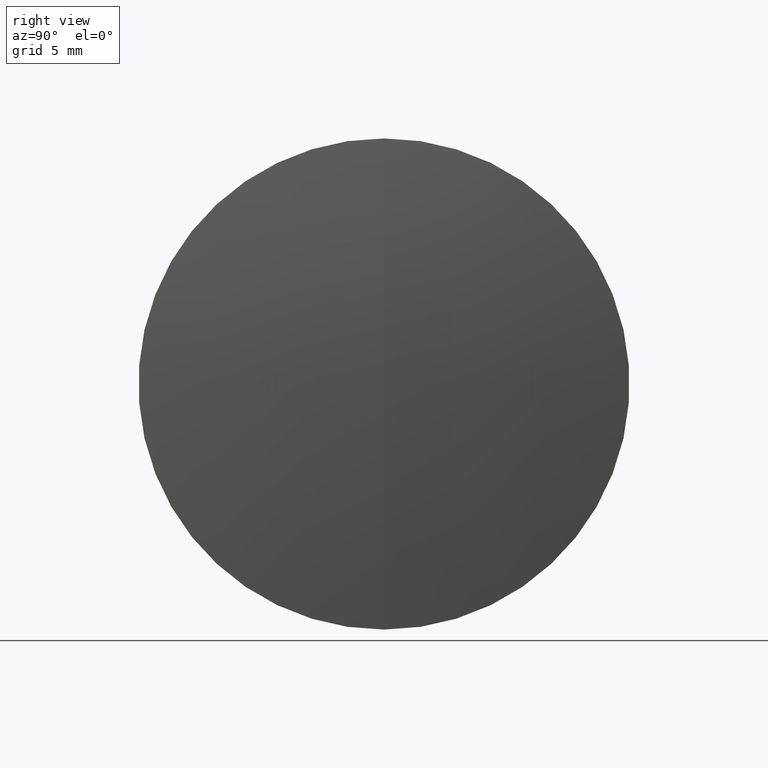
[diagram: clean part render]
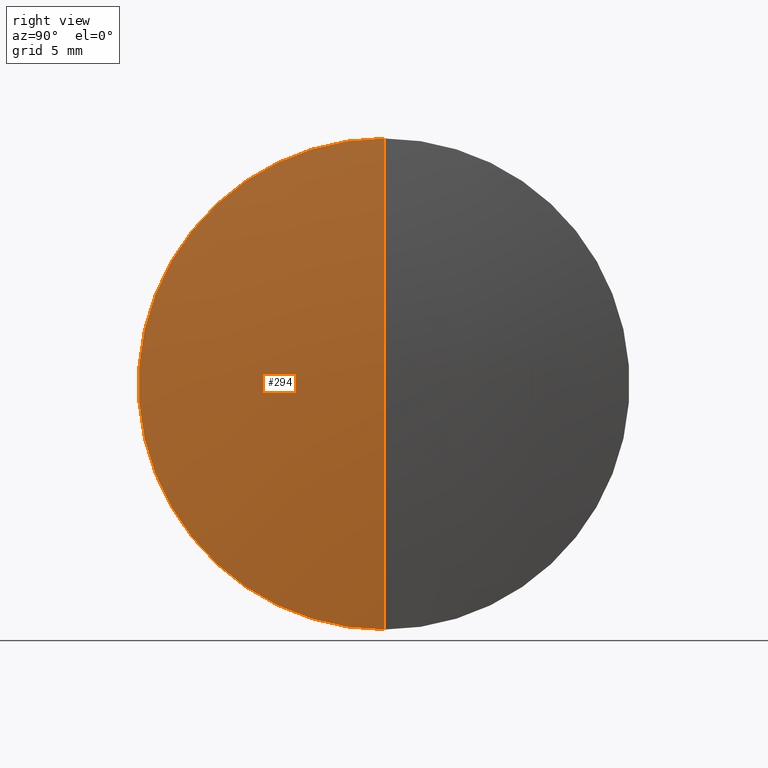
[diagram: same view with one face highlighted and labeled with its STEP entity id]
A machine part, right view. The second image highlights one B-rep face of the part: STEP entity #294.
In plain terms, the highlighted spherical surface has radius 97.27 mm.
Its self-contained STEP definition (entity closure, byte-faithful):
#20 = ORIENTED_EDGE ( 'NONE', *, *, #45, .F. ) ;
#26 = DIRECTION ( 'NONE',  ( 0.0000000000000000000, 1.000000000000000000, 0.0000000000000000000 ) ) ;
#30 = DIRECTION ( 'NONE',  ( -0.0000000000000000000, 1.000000000000000000, 1.224646799147353200E-016 ) ) ;
#45 = EDGE_CURVE ( 'NONE', #235, #74, #172, .T. ) ;
#56 = SPHERICAL_SURFACE ( 'NONE', #317, 97.27000000000005300 ) ;
#74 = VERTEX_POINT ( 'NONE', #185 ) ;
#76 = EDGE_CURVE ( 'NONE', #140, #74, #238, .T. ) ;
#99 = CARTESIAN_POINT ( 'NONE',  ( 283.7663387579516400, 1.555301434917134700E-015, -12.69999999999996600 ) ) ;
#113 = DIRECTION ( 'NONE',  ( 0.0000000000000000000, 0.0000000000000000000, 1.000000000000000000 ) ) ;
#121 = CIRCLE ( 'NONE', #167, 97.27000000000005300 ) ;
#140 = VERTEX_POINT ( 'NONE', #242 ) ;
#161 = DIRECTION ( 'NONE',  ( 0.0000000000000000000, -1.224646799147353200E-016, 1.000000000000000000 ) ) ;
#167 = AXIS2_PLACEMENT_3D ( 'NONE', #239, #30, #161 ) ;
#172 = CIRCLE ( 'NONE', #213, 12.69999999999996600 ) ;
#174 = DIRECTION ( 'NONE',  ( 0.0000000000000000000, 0.0000000000000000000, 1.000000000000000000 ) ) ;
#185 = CARTESIAN_POINT ( 'NONE',  ( 283.7663387579516400, 0.0000000000000000000, 12.69999999999996600 ) ) ;
#188 = FACE_OUTER_BOUND ( 'NONE', #246, .T. ) ;
#213 = AXIS2_PLACEMENT_3D ( 'NONE', #254, #331, #174 ) ;
#235 = VERTEX_POINT ( 'NONE', #99 ) ;
#238 = CIRCLE ( 'NONE', #245, 97.27000000000005300 ) ;
#239 = CARTESIAN_POINT ( 'NONE',  ( 187.3289865545651800, 0.0000000000000000000, 0.0000000000000000000 ) ) ;
#240 = CARTESIAN_POINT ( 'NONE',  ( 187.3289865545651800, 0.0000000000000000000, 0.0000000000000000000 ) ) ;
#242 = CARTESIAN_POINT ( 'NONE',  ( 284.5989865545652200, 0.0000000000000000000, 5.956069707653155200E-015 ) ) ;
#245 = AXIS2_PLACEMENT_3D ( 'NONE', #347, #343, #339 ) ;
#246 = EDGE_LOOP ( 'NONE', ( #329, #283, #20 ) ) ;
#254 = CARTESIAN_POINT ( 'NONE',  ( 283.7663387579516400, 0.0000000000000000000, 0.0000000000000000000 ) ) ;
#283 = ORIENTED_EDGE ( 'NONE', *, *, #76, .T. ) ;
#294 = ADVANCED_FACE ( 'NONE', ( #188 ), #56, .T. ) ;
#317 = AXIS2_PLACEMENT_3D ( 'NONE', #240, #26, #113 ) ;
#329 = ORIENTED_EDGE ( 'NONE', *, *, #340, .F. ) ;
#331 = DIRECTION ( 'NONE',  ( -1.000000000000000000, -0.0000000000000000000, -0.0000000000000000000 ) ) ;
#339 = DIRECTION ( 'NONE',  ( 0.0000000000000000000, 0.0000000000000000000, -1.000000000000000000 ) ) ;
#340 = EDGE_CURVE ( 'NONE', #140, #235, #121, .T. ) ;
#343 = DIRECTION ( 'NONE',  ( 0.0000000000000000000, -1.000000000000000000, 0.0000000000000000000 ) ) ;
#347 = CARTESIAN_POINT ( 'NONE',  ( 187.3289865545651800, 0.0000000000000000000, 0.0000000000000000000 ) ) ;